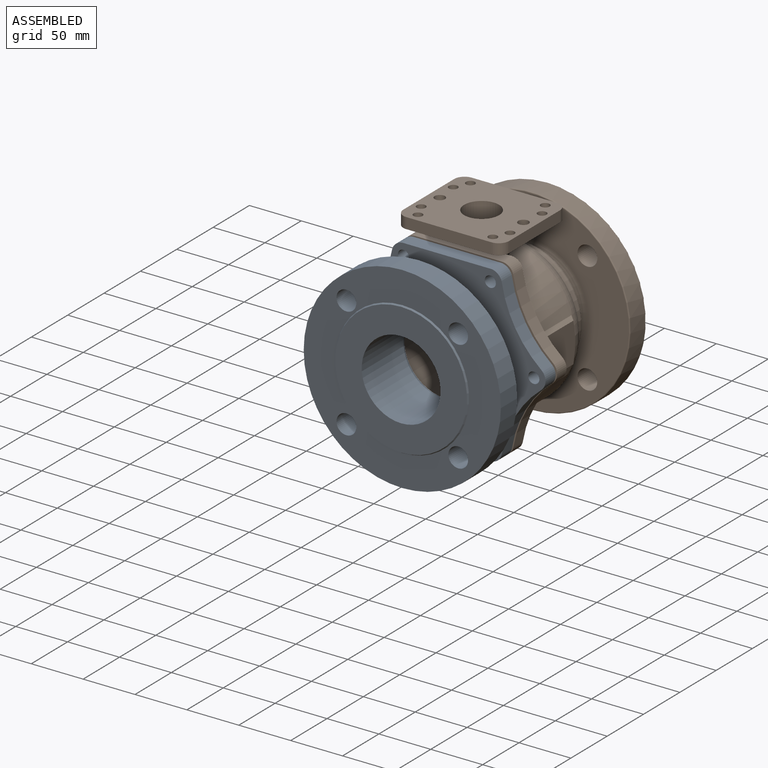
[diagram: assembled view]
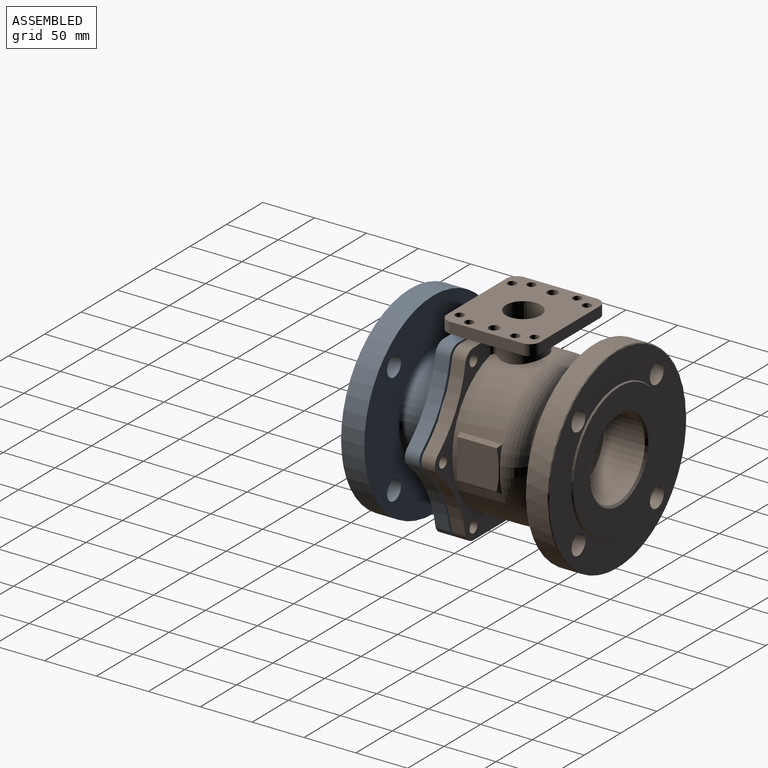
[diagram: assembled view, second angle]
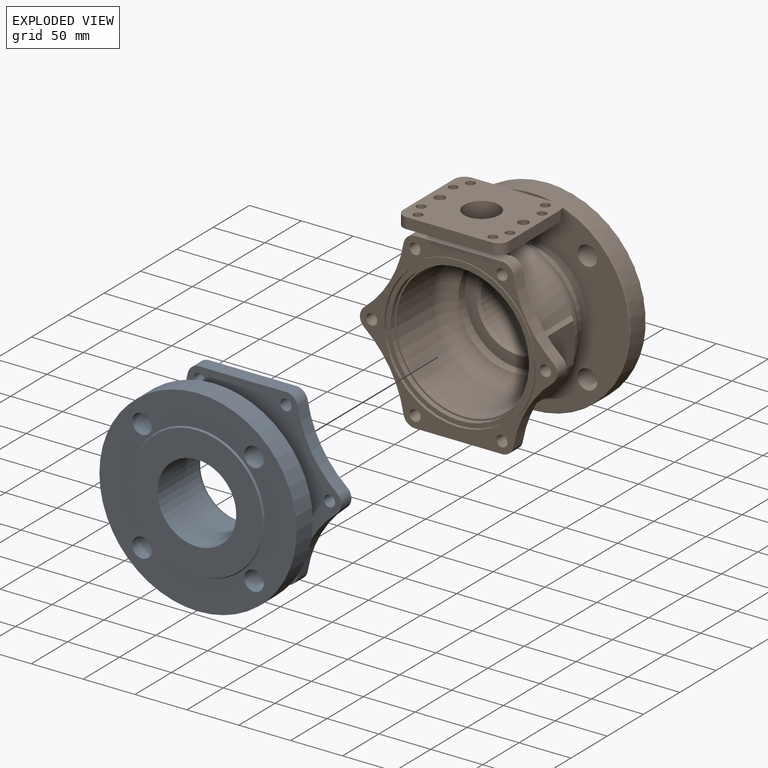
[diagram: exploded view]
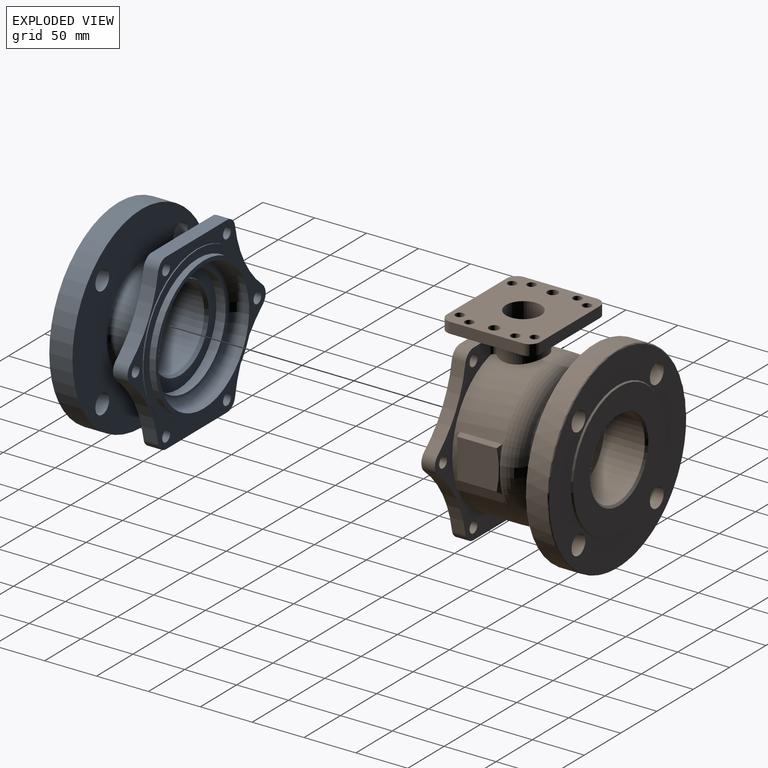
[diagram: exploded view, second angle]
ASSEMBLY  parts=2 mates=2
PART A: 47 faces, bbox 190.1x85.7x190 mm
  f0: cylinder r=38mm len=76mm, axis (0,-1,0), area 13791.7mm2, adj f14,f34
  f1: plane 104x104mm, normal (0,-1,0), area 2900.2mm2, adj f3,f32
  f2: cylinder r=44.1mm len=88.2mm, axis (0,-1,0), area 5430.9mm2, adj f45,f46
  f3: cylinder r=52mm len=104mm, axis (0,-1,0), area 2940.5mm2, adj f1,f4
  f4: torus R=52.5mm, axis (0,-1,0), area 5974.1mm2, adj f3,f5
  f5: cylinder r=62.5mm len=125mm, axis (0,-1,0), area 2125.5mm2, adj f4,f6
  f6: plane 132.8x132.8mm, normal (0,-1,0), area 1579.3mm2, adj f5,f7
  f7: cylinder r=66.4mm len=132.8mm, axis (0,-1,0), area 2503.2mm2, adj f6,f8
  f8: plane 149x149mm, normal (0,-1,0), area 3585.5mm2, adj f7,f9
  f9: cylinder r=74.5mm len=149mm, axis (0,-1,0), area 468.1mm2, adj f8,f27
  f10: plane 190.1x167.63mm, normal (0,1,0), area 11530mm2, adj f11,f15,f16,f17,f18,f19,f20,f21
  f11: cylinder r=58.1mm len=116.2mm, axis (0,-1,0), area 2007.8mm2, adj f10,f12
  f12: torus R=54.1mm, axis (0,-1,0), area 2236.3mm2, adj f11,f13
  f13: plane 108.2x108.2mm, normal (0,1,0), area 1621.1mm2, adj f12,f46
  f14: plane 127x127mm, normal (0,1,0), area 8131.2mm2, adj f0,f30
  f15: cylinder r=11.3mm len=14mm, axis (0,-1,0), area 210.9mm2, adj f10,f16,f26,f27
  f16: plane 85.39x14mm, normal (0,0,-1), area 1195.4mm2, adj f10,f15,f17,f27
  f17: cylinder r=11.3mm len=14mm, axis (0,-1,0), area 210.9mm2, adj f10,f16,f18,f27
  f18: cylinder r=108mm len=65.66mm, axis (0,-1,0), area 1084.5mm2, adj f10,f17,f19,f27
  f19: cylinder r=11.3mm len=17.45mm, axis (0,-1,0), area 279.1mm2, adj f10,f18,f20,f27
  f20: cylinder r=108mm len=65.66mm, axis (0,-1,0), area 1084.5mm2, adj f10,f19,f21,f27
  f21: cylinder r=11.3mm len=14mm, axis (0,-1,0), area 222.4mm2, adj f10,f20,f22,f27
  f22: plane 83.75x14mm, normal (0,0,1), area 1172.5mm2, adj f10,f21,f23,f27
  f23: cylinder r=11.3mm len=14mm, axis (0,-1,0), area 222.4mm2, adj f10,f22,f24,f27
  f24: cylinder r=108mm len=65.66mm, axis (0,-1,0), area 1084.5mm2, adj f10,f23,f25,f27
  f25: cylinder r=11.3mm len=17.45mm, axis (0,-1,0), area 279.1mm2, adj f10,f24,f26,f27
  f26: cylinder r=108mm len=65.66mm, axis (0,-1,0), area 1084.5mm2, adj f10,f15,f25,f27
  f27: plane 190.1x167.63mm, normal (0,-1,0), area 4698.2mm2, adj f9,f15,f16,f17,f18,f19,f20,f21
  f28: cylinder r=95mm len=190mm, axis (0,-1,0), area 13310.9mm2, adj f29,f31
  f29: plane 190x190mm, normal (0,-1,0), area 19645mm2, adj f28,f35,f36,f37,f38,f45
  f30: cone r=64.42mm half-angle=30deg, axis (0,-1,0), area 742.5mm2, adj f14,f31
  f31: plane 190x190mm, normal (0,1,0), area 14179.8mm2, adj f28,f30,f35,f36,f37,f38
  f32: cone r=42.2mm half-angle=15deg, axis (0,1,0), area 409.8mm2, adj f1,f33
  f33: plane 83.6x83.6mm, normal (0,-1,0), area 537.2mm2, adj f32,f34
  f34: cone r=39.7mm half-angle=27deg, axis (0,-1,0), area 914.1mm2, adj f0,f33
  f35: cylinder r=9.5mm len=22.3mm, axis (0,1,0), area 1331.1mm2, adj f29,f31
  f36: cylinder r=9.5mm len=22.3mm, axis (0,1,0), area 1331.1mm2, adj f29,f31
  f37: cylinder r=9.5mm len=22.3mm, axis (0,1,0), area 1331.1mm2, adj f29,f31
  f38: cylinder r=9.5mm len=22.3mm, axis (0,1,0), area 1331.1mm2, adj f29,f31
  f39: cylinder r=5.36mm len=14mm, axis (0,-1,0), area 471.3mm2, adj f10,f27
  f40: cylinder r=5.36mm len=14mm, axis (0,-1,0), area 471.3mm2, adj f10,f27
  f41: cylinder r=5.36mm len=14mm, axis (0,-1,0), area 471.3mm2, adj f10,f27
  f42: cylinder r=5.36mm len=14mm, axis (0,-1,0), area 471.3mm2, adj f10,f27
  f43: cylinder r=5.36mm len=14mm, axis (0,-1,0), area 471.3mm2, adj f10,f27
  f44: cylinder r=5.36mm len=14mm, axis (0,-1,0), area 471.3mm2, adj f10,f27
  f45: torus R=49.1mm, axis (0,1,0), area 2265.9mm2, adj f2,f29
  f46: torus R=49.1mm, axis (0,-1,0), area 2265.9mm2, adj f2,f13
PART B: 89 faces, bbox 205.7x137.4x208.4 mm
  f0: cylinder r=38mm len=76mm, axis (0,-1,0), area 8921mm2, adj f42,f49
  f1: plane 104x104mm, normal (0,-1,0), area 2900.2mm2, adj f8,f47
  f2: cylinder r=71.1mm len=142.2mm, axis (0,-1,0), area 16455.5mm2, adj f4,f22,f36,f71,f72,f73,f87,f88
  f3: cylinder r=65mm len=130mm, axis (0,-1,0), area 19538.9mm2, adj f9,f29,f79
  f4: torus R=47.5mm, axis (0,-1,0), area 9858.2mm2, adj f2,f72,f73,f74,f86
  f5: cylinder r=58.1mm len=116.2mm, axis (0,-1,0), area 1475.1mm2, adj f6,f86
  f6: torus R=54.1mm, axis (0,-1,0), area 2236.3mm2, adj f5,f7
  f7: plane 108.2x108.2mm, normal (0,1,0), area 1071.4mm2, adj f6,f57
  f8: cylinder r=52mm len=104mm, axis (0,-1,0), area 2940.5mm2, adj f1,f9
  f9: torus R=47.5mm, axis (0,-1,0), area 8705.3mm2, adj f3,f8
  f10: cylinder r=11.3mm len=13mm, axis (0,-1,0), area 195.9mm2, adj f11,f21,f22,f23
  f11: plane 85.39x13mm, normal (0,0,-1), area 1110mm2, adj f10,f12,f22,f23
  f12: cylinder r=11.3mm len=13mm, axis (0,-1,0), area 195.9mm2, adj f11,f13,f22,f23
  f13: cylinder r=108mm len=65.66mm, axis (0,-1,0), area 1007.1mm2, adj f12,f14,f22,f23
  f14: cylinder r=11.3mm len=17.45mm, axis (0,-1,0), area 259.2mm2, adj f13,f15,f22,f23
  f15: cylinder r=108mm len=65.66mm, axis (0,-1,0), area 1007.1mm2, adj f14,f16,f22,f23
  f16: cylinder r=11.3mm len=13mm, axis (0,-1,0), area 206.5mm2, adj f15,f17,f22,f23
  f17: plane 83.75x17.9mm, normal (0,0,1), area 1061.7mm2, adj f16,f18,f22,f23,f36,f87,f88
  f18: cylinder r=11.3mm len=13mm, axis (0,-1,0), area 206.5mm2, adj f17,f19,f22,f23
  f19: cylinder r=108mm len=65.66mm, axis (0,-1,0), area 1007.1mm2, adj f18,f20,f22,f23
  f20: cylinder r=11.3mm len=17.45mm, axis (0,-1,0), area 259.2mm2, adj f19,f21,f22,f23
  f21: cylinder r=108mm len=65.66mm, axis (0,-1,0), area 1007.1mm2, adj f10,f20,f22,f23
  f22: plane 190.1x167.63mm, normal (0,1,0), area 5725.7mm2, adj f2,f10,f11,f12,f13,f14,f15,f16
  f23: plane 190.1x167.63mm, normal (0,-1,0), area 4698.2mm2, adj f10,f11,f12,f13,f14,f15,f16,f17
  f24: cylinder r=74.5mm len=149mm, axis (0,1,0), area 468.1mm2, adj f23,f25
  f25: plane 149x149mm, normal (0,-1,0), area 1599.9mm2, adj f24,f26
  f26: cylinder r=71mm len=142mm, axis (0,1,0), area 1249.1mm2, adj f25,f27
  f27: plane 142x142mm, normal (0,-1,0), area 1902mm2, adj f26,f28
  f28: cylinder r=66.6mm len=133.2mm, axis (0,1,0), area 2176mm2, adj f27,f29
  f29: plane 133.2x133.2mm, normal (0,-1,0), area 661.5mm2, adj f3,f28
  f30: plane 82x10.5mm, normal (0,1,0), area 861mm2, adj f34,f35,f37,f40
  f31: plane 70x10.5mm, normal (-1,0,0), area 735mm2, adj f34,f35,f37,f38
  f32: plane 82x10.5mm, normal (0,-1,0), area 861mm2, adj f34,f35,f38,f39
  f33: plane 70x10.5mm, normal (1,0,0), area 735mm2, adj f34,f35,f39,f40
  f34: plane 102x90mm, normal (0,0,-1), area 6962.6mm2, adj f30,f31,f32,f33,f36,f37,f38,f39
  f35: plane 102x90mm, normal (0,0,1), area 7585.8mm2, adj f30,f31,f32,f33,f37,f38,f39,f40
  f36: cylinder r=22mm len=44mm, axis (0,0,1), area 3016.7mm2, adj f2,f17,f34,f87,f88
  f37: cylinder r=10mm len=10.5mm, axis (0,0,-1), area 164.9mm2, adj f30,f31,f34,f35
  f38: cylinder r=10mm len=10.5mm, axis (0,0,1), area 164.9mm2, adj f31,f32,f34,f35
  f39: cylinder r=10mm len=10.5mm, axis (0,0,-1), area 164.9mm2, adj f32,f33,f34,f35
  f40: cylinder r=10mm len=10.5mm, axis (0,0,1), area 164.9mm2, adj f30,f33,f34,f35
  f41: plane 188x188mm, normal (0,-1,0), area 17430.2mm2, adj f50,f52,f53,f54,f55,f56
  f42: cone r=40mm half-angle=45deg, axis (0,1,0), area 693.1mm2, adj f0,f43
  f43: plane 127x127mm, normal (0,1,0), area 7641.1mm2, adj f42,f44
  f44: cone r=64.42mm half-angle=30deg, axis (0,-1,0), area 742.5mm2, adj f43,f45
  f45: plane 188x188mm, normal (0,1,0), area 13586.1mm2, adj f44,f51,f53,f54,f55,f56
  f46: cylinder r=95mm len=190mm, axis (0,-1,0), area 12117.1mm2, adj f51,f52
  f47: cone r=42.2mm half-angle=15deg, axis (0,1,0), area 409.8mm2, adj f1,f48
  f48: plane 83.6x83.6mm, normal (0,-1,0), area 537.2mm2, adj f47,f49
  f49: cone r=39.7mm half-angle=27deg, axis (0,-1,0), area 914.1mm2, adj f0,f48
  f50: torus R=54.1mm, axis (0,-1,0), area 2254.1mm2, adj f41,f57
  f51: torus R=94mm, axis (0,1,0), area 934mm2, adj f45,f46
  f52: torus R=94mm, axis (0,-1,0), area 934mm2, adj f41,f46
  f53: cylinder r=9.5mm len=22.3mm, axis (0,1,0), area 1331.1mm2, adj f41,f45
  f54: cylinder r=9.5mm len=22.3mm, axis (0,1,0), area 1331.1mm2, adj f41,f45
  f55: cylinder r=9.5mm len=22.3mm, axis (0,1,0), area 1331.1mm2, adj f41,f45
  f56: cylinder r=9.5mm len=22.3mm, axis (0,1,0), area 1331.1mm2, adj f41,f45
  f57: torus R=50.85mm, axis (0,1,0), area 3612.1mm2, adj f7,f50
  f58: cylinder r=4.25mm len=10.5mm, axis (0,0,1), area 280.4mm2, adj f34,f35
  f59: cylinder r=4.25mm len=10.5mm, axis (0,0,1), area 280.4mm2, adj f34,f35
  f60: cylinder r=4.25mm len=10.5mm, axis (0,0,1), area 280.4mm2, adj f34,f35
  f61: cylinder r=4.25mm len=10.5mm, axis (0,0,1), area 280.4mm2, adj f34,f35
  f62: cylinder r=4.25mm len=10.5mm, axis (0,0,1), area 280.4mm2, adj f34,f35
  f63: cylinder r=4.25mm len=10.5mm, axis (0,0,1), area 280.4mm2, adj f34,f35
  f64: cylinder r=4.25mm len=10.5mm, axis (0,0,1), area 280.4mm2, adj f34,f35
  f65: cylinder r=4.25mm len=10.5mm, axis (0,0,1), area 280.4mm2, adj f34,f35
  f66: cylinder r=5mm len=10.5mm, axis (0,0,1), area 329.9mm2, adj f34,f35
  f67: cylinder r=5mm len=10.5mm, axis (0,0,1), area 329.9mm2, adj f34,f35
  f68: plane 38.09x0.05mm, normal (0,0,1), area 1.9mm2, adj f69,f71,f73,f74
  f69: plane 40.37x38mm, normal (1,0,0), area 1504.1mm2, adj f68,f70,f71,f74
  f70: plane 38.09x0.05mm, normal (0,0,-1), area 1.9mm2, adj f69,f71,f72,f74
  f71: plane 43.48x3.81mm, normal (0,-1,0), area 55.7mm2, adj f2,f68,f69,f70,f72,f73
  f72: plane 40.83x3.88mm, normal (0.59,0,-0.81), area 183.3mm2, adj f2,f4,f70,f71,f74
  f73: plane 40.83x3.88mm, normal (0.59,0,0.81), area 183.3mm2, adj f2,f4,f68,f71,f74
  f74: cone r=74.03mm half-angle=47.1deg, axis (0,-1,0), area 79.8mm2, adj f4,f68,f69,f70,f72,f73
  f75: cylinder r=16.9mm len=33.8mm, axis (0,0,1), area 2399.8mm2, adj f35,f76
  f76: plane 33.8x33.8mm, normal (0,0,1), area 382.6mm2, adj f75,f77
  f77: cylinder r=12.8mm len=25.6mm, axis (0,0,1), area 1045.5mm2, adj f76,f78
  f78: plane 34x34mm, normal (0,0,-1), area 393.2mm2, adj f77,f79
  f79: cylinder r=17mm len=34mm, axis (0,0,1), area 643.8mm2, adj f3,f78
  f80: cylinder r=5.36mm len=13mm, axis (0,-1,0), area 437.7mm2, adj f22,f23
  f81: cylinder r=5.36mm len=13mm, axis (0,-1,0), area 437.7mm2, adj f22,f23
  f82: cylinder r=5.36mm len=13mm, axis (0,-1,0), area 437.7mm2, adj f22,f23
  f83: cylinder r=5.36mm len=13mm, axis (0,-1,0), area 437.7mm2, adj f22,f23
  f84: cylinder r=5.36mm len=13mm, axis (0,-1,0), area 437.7mm2, adj f22,f23
  f85: cylinder r=5.36mm len=13mm, axis (0,-1,0), area 437.7mm2, adj f22,f23
  f86: torus R=63.1mm, axis (0,-1,0), area 1838.5mm2, adj f4,f5
  f87: cylinder r=3mm len=15.42mm, axis (0,0,1), area 100.4mm2, adj f2,f17,f22,f36
  f88: cylinder r=3mm len=15.42mm, axis (0,0,1), area 100.4mm2, adj f2,f17,f22,f36
PLACE A rot(axis=(1,0,0),180deg) t=(8.04,-39.81,3.82)mm
PLACE B t=(8.04,-45.81,3.82)mm fixed
MATE parallel A.f0 <-> B.f0  axis (0,1,0) through (8.04,-45.81,3.82)mm
MATE cylindrical A.f0 <-> B.f0  axis (0,1,0) through (8.04,-94.93,3.82)mm
